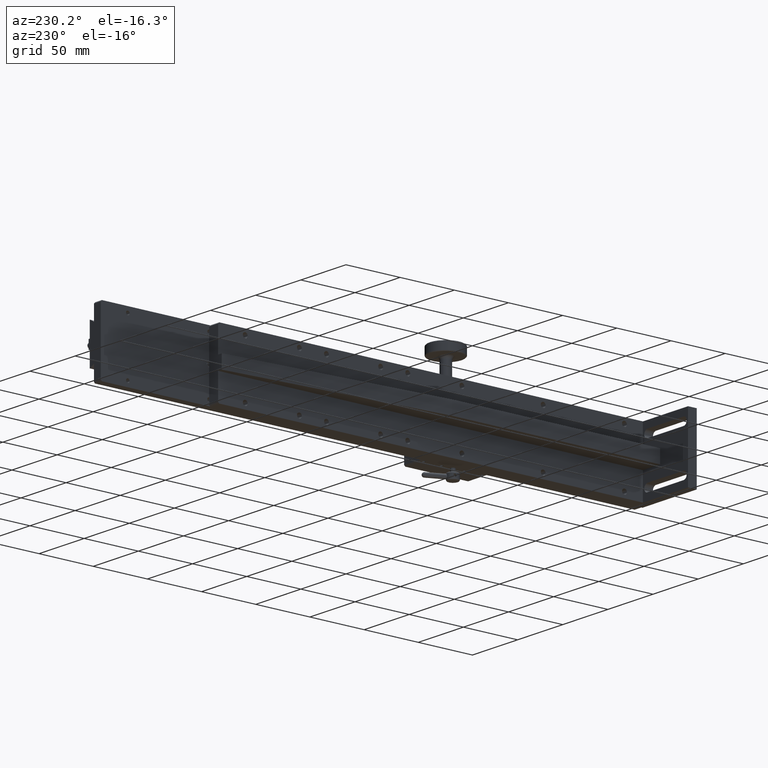
[diagram: clean part render]
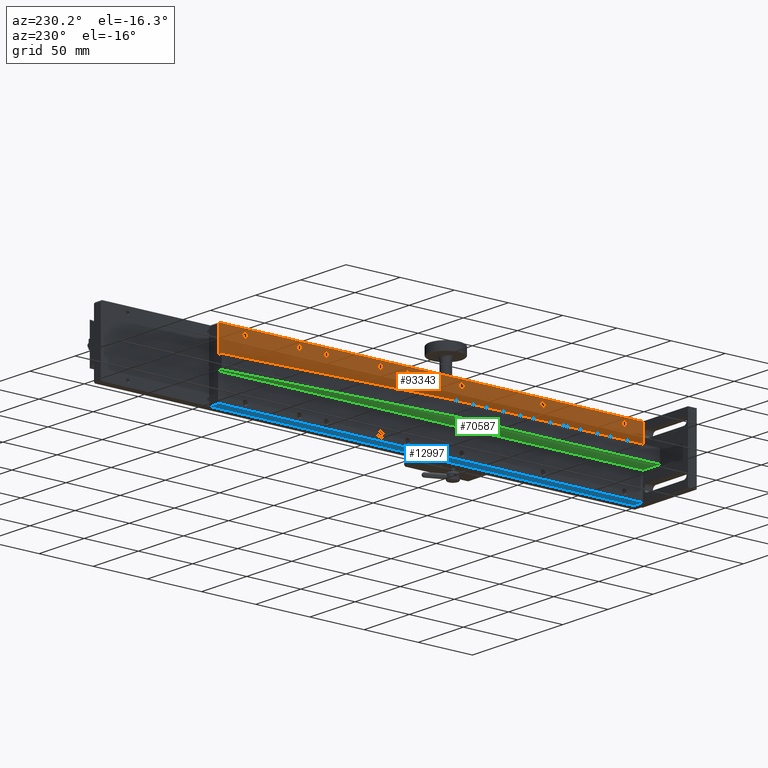
[diagram: same view with three faces highlighted in distinct colors, each labeled with its STEP entity id]
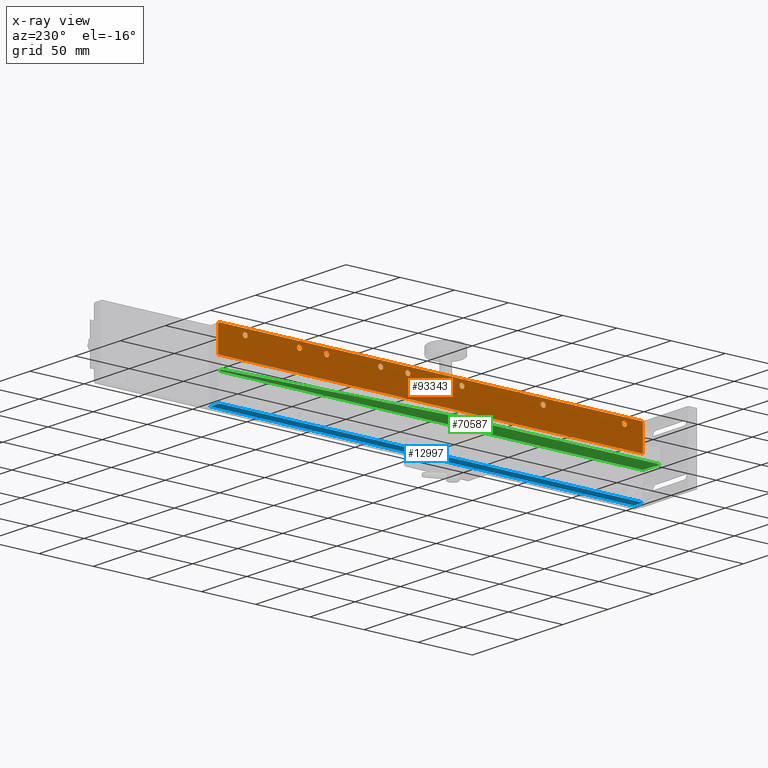
[diagram: x-ray of the same camera — body ghosted, the three highlighted faces saturated]
A machine part, auxiliary view with three faces highlighted in distinct colors.
The next image is the same camera in x-ray (body ghosted, the three faces saturated) — at least one of them is partly hidden behind the body in this view.
Their STEP definitions:

[orange] entity #93343 — the highlighted planar face has unit normal (1, -0, -0).
#373 = AXIS2_PLACEMENT_3D ( 'NONE', #85020, #87187, #35109 ) ;
#468 = CARTESIAN_POINT ( 'NONE',  ( 22.00000000000061107, 257.9999999999999432, -4.999999999997893241 ) ) ;
#469 = CARTESIAN_POINT ( 'NONE',  ( 22.00000000000070699, 332.9999999999999432, -4.999999999997393196 ) ) ;
#1274 = AXIS2_PLACEMENT_3D ( 'NONE', #68482, #45192, #61256 ) ;
#1486 = VERTEX_POINT ( 'NONE', #81207 ) ;
#2073 = VERTEX_POINT ( 'NONE', #51767 ) ;
#3132 = CIRCLE ( 'NONE', #52723, 2.249999999999999556 ) ;
#3375 = VERTEX_POINT ( 'NONE', #73319 ) ;
#3541 = CIRCLE ( 'NONE', #15947, 2.249999999999999556 ) ;
#3549 = AXIS2_PLACEMENT_3D ( 'NONE', #80980, #72674, #4538 ) ;
#3702 = EDGE_LOOP ( 'NONE', ( #21574, #53959 ) ) ;
#3958 = CARTESIAN_POINT ( 'NONE',  ( 22.00000000000077094, 382.9999999999996021, -4.999999999997395861 ) ) ;
#4138 = CARTESIAN_POINT ( 'NONE',  ( 22.00000000000031619, 15.99999999999999645, -1.137954273982938025E-13 ) ) ;
#4538 = DIRECTION ( 'NONE',  ( -2.261700943893177148E-15, -2.095098079272719268E-16, -1.000000000000000000 ) ) ;
#4724 = CIRCLE ( 'NONE', #25908, 2.249999999999999556 ) ;
#6620 = DIRECTION ( 'NONE',  ( 2.261700943893177148E-15, 2.095098079272719268E-16, 1.000000000000000000 ) ) ;
#6716 = VERTEX_POINT ( 'NONE', #89079 ) ;
#8057 = VERTEX_POINT ( 'NONE', #61255 ) ;
#8332 = ORIENTED_EDGE ( 'NONE', *, *, #69697, .F. ) ;
#11285 = AXIS2_PLACEMENT_3D ( 'NONE', #107186, #15731, #81715 ) ;
#11466 = DIRECTION ( 'NONE',  ( 1.541976423090495436E-15, 0.000000000000000000, 1.000000000000000000 ) ) ;
#11745 = FACE_BOUND ( 'NONE', #37784, .T. ) ;
#11796 = DIRECTION ( 'NONE',  ( -1.276756478318930021E-15, -1.000000000000000000, 2.095098079272746386E-16 ) ) ;
#12900 = LINE ( 'NONE', #97671, #36964 ) ;
#13385 = VERTEX_POINT ( 'NONE', #20466 ) ;
#13662 = VERTEX_POINT ( 'NONE', #48694 ) ;
#14888 = EDGE_CURVE ( 'NONE', #84525, #93003, #61597, .T. ) ;
#15098 = EDGE_LOOP ( 'NONE', ( #52143, #36585 ) ) ;
#15731 = DIRECTION ( 'NONE',  ( -1.000000000000000000, 1.276756478318930021E-15, 2.044860509396075866E-15 ) ) ;
#15947 = AXIS2_PLACEMENT_3D ( 'NONE', #3958, #61039, #88724 ) ;
#16048 = CARTESIAN_POINT ( 'NONE',  ( 22.00000000000051870, 182.9999999999996305, -4.999999999998752109 ) ) ;
#16925 = EDGE_LOOP ( 'NONE', ( #43755, #70283 ) ) ;
#18324 = CIRCLE ( 'NONE', #11285, 2.249999999999999556 ) ;
#18898 = CIRCLE ( 'NONE', #98481, 2.249999999999999556 ) ;
#19147 = EDGE_CURVE ( 'NONE', #61461, #2073, #77872, .T. ) ;
#20466 = CARTESIAN_POINT ( 'NONE',  ( 22.00000000000081712, 407.0000000000000000, -1.957137622978581741E-13 ) ) ;
#21574 = ORIENTED_EDGE ( 'NONE', *, *, #53772, .F. ) ;
#21718 = CIRCLE ( 'NONE', #57145, 2.249999999999999556 ) ;
#21816 = EDGE_CURVE ( 'NONE', #3375, #74027, #60963, .T. ) ;
#23219 = AXIS2_PLACEMENT_3D ( 'NONE', #104213, #53791, #87596 ) ;
#23842 = AXIS2_PLACEMENT_3D ( 'NONE', #65012, #47867, #30141 ) ;
#23981 = CARTESIAN_POINT ( 'NONE',  ( 22.00000000000041922, 107.9999999999996305, -7.249999999999259259 ) ) ;
#25908 = AXIS2_PLACEMENT_3D ( 'NONE', #108463, #100684, #51356 ) ;
#26775 = CARTESIAN_POINT ( 'NONE',  ( 22.00000000000026290, 15.99999999999999289, -24.00000000000010658 ) ) ;
#26867 = EDGE_CURVE ( 'NONE', #8057, #93823, #79865, .T. ) ;
#27080 = CIRCLE ( 'NONE', #64187, 2.249999999999999556 ) ;
#27530 = CARTESIAN_POINT ( 'NONE',  ( 22.00000000000070699, 332.9999999999999432, -4.999999999997393196 ) ) ;
#27902 = DIRECTION ( 'NONE',  ( 1.541976423090495436E-15, 0.000000000000000000, 1.000000000000000000 ) ) ;
#28849 = EDGE_CURVE ( 'NONE', #93823, #8057, #74645, .T. ) ;
#30141 = DIRECTION ( 'NONE',  ( 1.541976423090495436E-15, 0.000000000000000000, 1.000000000000000000 ) ) ;
#30188 = ORIENTED_EDGE ( 'NONE', *, *, #21816, .F. ) ;
#30682 = CARTESIAN_POINT ( 'NONE',  ( 22.00000000000077449, 382.9999999999996021, -2.749999999997396749 ) ) ;
#30748 = ORIENTED_EDGE ( 'NONE', *, *, #28849, .F. ) ;
#30894 = EDGE_CURVE ( 'NONE', #104721, #32725, #48219, .T. ) ;
#31359 = EDGE_CURVE ( 'NONE', #53297, #80721, #44654, .T. ) ;
#32725 = VERTEX_POINT ( 'NONE', #100586 ) ;
#33161 = DIRECTION ( 'NONE',  ( -1.000000000000000000, 1.276756478318930021E-15, 2.044860509396075866E-15 ) ) ;
#33971 = EDGE_CURVE ( 'NONE', #32725, #104721, #55713, .T. ) ;
#34400 = CARTESIAN_POINT ( 'NONE',  ( 22.00000000000081712, 408.0000000000000000, -1.959232721057854939E-13 ) ) ;
#34692 = CARTESIAN_POINT ( 'NONE',  ( 22.00000000000071054, 332.9999999999999432, -2.749999999997393196 ) ) ;
#35039 = VECTOR ( 'NONE', #6620, 1000.000000000000000 ) ;
#35109 = DIRECTION ( 'NONE',  ( 1.541976423090495436E-15, 0.000000000000000000, 1.000000000000000000 ) ) ;
#36585 = ORIENTED_EDGE ( 'NONE', *, *, #49362, .F. ) ;
#36964 = VECTOR ( 'NONE', #11796, 1000.000000000000000 ) ;
#37784 = EDGE_LOOP ( 'NONE', ( #97472, #30188 ) ) ;
#39273 = EDGE_LOOP ( 'NONE', ( #30748, #76215 ) ) ;
#40448 = DIRECTION ( 'NONE',  ( 1.541976423090495436E-15, 0.000000000000000000, 1.000000000000000000 ) ) ;
#40522 = EDGE_CURVE ( 'NONE', #104917, #73475, #58935, .T. ) ;
#41276 = EDGE_CURVE ( 'NONE', #67894, #73475, #12900, .T. ) ;
#41893 = ORIENTED_EDGE ( 'NONE', *, *, #47399, .F. ) ;
#43713 = DIRECTION ( 'NONE',  ( 1.541976423090495436E-15, 0.000000000000000000, 1.000000000000000000 ) ) ;
#43755 = ORIENTED_EDGE ( 'NONE', *, *, #43922, .F. ) ;
#43922 = EDGE_CURVE ( 'NONE', #2073, #61461, #98555, .T. ) ;
#43951 = DIRECTION ( 'NONE',  ( -2.261700943893177148E-15, -2.095098079272719268E-16, -1.000000000000000000 ) ) ;
#44137 = EDGE_LOOP ( 'NONE', ( #94368, #67262, #8332, #48697, #100559 ) ) ;
#44268 = CARTESIAN_POINT ( 'NONE',  ( 22.00000000000058265, 232.9999999999996305, -4.999999999998411937 ) ) ;
#44654 = CIRCLE ( 'NONE', #106594, 2.249999999999999556 ) ;
#45078 = DIRECTION ( 'NONE',  ( -1.000000000000000000, 1.276756478318930021E-15, 2.044860509396075866E-15 ) ) ;
#45192 = DIRECTION ( 'NONE',  ( -1.000000000000000000, 1.276756478318930021E-15, 2.044860509396075866E-15 ) ) ;
#45761 = DIRECTION ( 'NONE',  ( -6.964609106996406527E-16, 0.7071067811865670016, -0.7071067811865280328 ) ) ;
#45971 = CARTESIAN_POINT ( 'NONE',  ( 22.00000000000031974, 32.99999999999962341, -7.249999999999768185 ) ) ;
#47178 = FACE_BOUND ( 'NONE', #39273, .T. ) ;
#47399 = EDGE_CURVE ( 'NONE', #93003, #84525, #18898, .T. ) ;
#47867 = DIRECTION ( 'NONE',  ( -1.000000000000000000, 1.276756478318930021E-15, 2.044860509396075866E-15 ) ) ;
#48061 = CARTESIAN_POINT ( 'NONE',  ( 22.00000000000026290, 15.99999999999999289, -24.00000000000010658 ) ) ;
#48219 = CIRCLE ( 'NONE', #103034, 2.249999999999999556 ) ;
#48694 = CARTESIAN_POINT ( 'NONE',  ( 22.00000000000061462, 257.9999999999999432, -2.749999999997893685 ) ) ;
#48697 = ORIENTED_EDGE ( 'NONE', *, *, #41276, .T. ) ;
#49362 = EDGE_CURVE ( 'NONE', #1486, #91508, #4724, .T. ) ;
#50045 = EDGE_CURVE ( 'NONE', #13385, #81399, #85710, .T. ) ;
#50942 = ORIENTED_EDGE ( 'NONE', *, *, #33971, .F. ) ;
#51202 = DIRECTION ( 'NONE',  ( 1.541976423090495436E-15, 0.000000000000000000, 1.000000000000000000 ) ) ;
#51356 = DIRECTION ( 'NONE',  ( 1.541976423090495436E-15, 0.000000000000000000, 1.000000000000000000 ) ) ;
#51435 = DIRECTION ( 'NONE',  ( 1.541976423090495436E-15, 0.000000000000000000, 1.000000000000000000 ) ) ;
#51767 = CARTESIAN_POINT ( 'NONE',  ( 22.00000000000032685, 32.99999999999963052, -2.749999999999769074 ) ) ;
#52143 = ORIENTED_EDGE ( 'NONE', *, *, #81317, .F. ) ;
#52560 = VECTOR ( 'NONE', #45761, 1000.000000000000000 ) ;
#52723 = AXIS2_PLACEMENT_3D ( 'NONE', #468, #33161, #57546 ) ;
#52799 = VECTOR ( 'NONE', #66545, 1000.000000000000000 ) ;
#53297 = VERTEX_POINT ( 'NONE', #72479 ) ;
#53772 = EDGE_CURVE ( 'NONE', #13662, #6716, #3132, .T. ) ;
#53791 = DIRECTION ( 'NONE',  ( -1.000000000000000000, 1.276756478318930021E-15, 2.044860509396075866E-15 ) ) ;
#53959 = ORIENTED_EDGE ( 'NONE', *, *, #109242, .F. ) ;
#54030 = DIRECTION ( 'NONE',  ( 1.541976423090495436E-15, 0.000000000000000000, 1.000000000000000000 ) ) ;
#55117 = CARTESIAN_POINT ( 'NONE',  ( 22.00000000000032330, 32.99999999999963052, -4.999999999999768185 ) ) ;
#55487 = FACE_BOUND ( 'NONE', #102369, .T. ) ;
#55503 = EDGE_CURVE ( 'NONE', #13385, #104917, #57682, .T. ) ;
#55713 = CIRCLE ( 'NONE', #23842, 2.249999999999999556 ) ;
#57070 = DIRECTION ( 'NONE',  ( -1.000000000000000000, 1.276756478318930021E-15, 2.044860509396075866E-15 ) ) ;
#57145 = AXIS2_PLACEMENT_3D ( 'NONE', #469, #101860, #51435 ) ;
#57221 = CARTESIAN_POINT ( 'NONE',  ( 22.00000000000058620, 232.9999999999996305, -2.749999999998412381 ) ) ;
#57546 = DIRECTION ( 'NONE',  ( 1.541976423090495436E-15, 0.000000000000000000, 1.000000000000000000 ) ) ;
#57682 = LINE ( 'NONE', #34400, #52799 ) ;
#58196 = CARTESIAN_POINT ( 'NONE',  ( 22.00000000000068212, 307.9999999999996021, -2.749999999997904343 ) ) ;
#58935 = LINE ( 'NONE', #26775, #106083 ) ;
#59784 = DIRECTION ( 'NONE',  ( -1.000000000000000000, 1.276756478318930021E-15, 2.044860509396075866E-15 ) ) ;
#59932 = EDGE_CURVE ( 'NONE', #80721, #53297, #18324, .T. ) ;
#60963 = CIRCLE ( 'NONE', #107167, 2.249999999999999556 ) ;
#61039 = DIRECTION ( 'NONE',  ( -1.000000000000000000, 1.276756478318930021E-15, 2.044860509396075866E-15 ) ) ;
#61067 = CARTESIAN_POINT ( 'NONE',  ( 22.00000000000042633, 107.9999999999996305, -2.749999999999261036 ) ) ;
#61255 = CARTESIAN_POINT ( 'NONE',  ( 22.00000000000067502, 307.9999999999996021, -7.249999999997903011 ) ) ;
#61256 = DIRECTION ( 'NONE',  ( 1.541976423090495436E-15, 0.000000000000000000, 1.000000000000000000 ) ) ;
#61461 = VERTEX_POINT ( 'NONE', #45971 ) ;
#61576 = CARTESIAN_POINT ( 'NONE',  ( 22.00000000000081357, 408.0000000000000000, -1.000000000000140998 ) ) ;
#61597 = CIRCLE ( 'NONE', #77510, 2.249999999999999556 ) ;
#62714 = FACE_BOUND ( 'NONE', #15098, .T. ) ;
#62869 = EDGE_CURVE ( 'NONE', #74027, #3375, #21718, .T. ) ;
#63812 = PLANE ( 'NONE',  #3549 ) ;
#64187 = AXIS2_PLACEMENT_3D ( 'NONE', #71133, #104377, #27902 ) ;
#64349 = FACE_OUTER_BOUND ( 'NONE', #44137, .T. ) ;
#64782 = LINE ( 'NONE', #72568, #35039 ) ;
#65012 = CARTESIAN_POINT ( 'NONE',  ( 22.00000000000051870, 182.9999999999996305, -4.999999999998752109 ) ) ;
#66504 = ORIENTED_EDGE ( 'NONE', *, *, #14888, .F. ) ;
#66545 = DIRECTION ( 'NONE',  ( -1.276756478318930021E-15, -1.000000000000000000, 2.095098079272746386E-16 ) ) ;
#67262 = ORIENTED_EDGE ( 'NONE', *, *, #50045, .T. ) ;
#67894 = VERTEX_POINT ( 'NONE', #109592 ) ;
#68482 = CARTESIAN_POINT ( 'NONE',  ( 22.00000000000032330, 32.99999999999963052, -4.999999999999768185 ) ) ;
#69496 = ORIENTED_EDGE ( 'NONE', *, *, #30894, .F. ) ;
#69530 = ORIENTED_EDGE ( 'NONE', *, *, #59932, .F. ) ;
#69697 = EDGE_CURVE ( 'NONE', #67894, #81399, #64782, .T. ) ;
#70283 = ORIENTED_EDGE ( 'NONE', *, *, #19147, .F. ) ;
#70669 = DIRECTION ( 'NONE',  ( -1.000000000000000000, 1.276756478318930021E-15, 2.044860509396075866E-15 ) ) ;
#71040 = FACE_BOUND ( 'NONE', #3702, .T. ) ;
#71133 = CARTESIAN_POINT ( 'NONE',  ( 22.00000000000061107, 257.9999999999999432, -4.999999999997893241 ) ) ;
#71264 = CARTESIAN_POINT ( 'NONE',  ( 22.00000000000081357, 408.0000000000000000, -1.000000000000140110 ) ) ;
#71327 = CARTESIAN_POINT ( 'NONE',  ( 22.00000000000042277, 107.9999999999996305, -4.999999999999260147 ) ) ;
#72120 = FACE_BOUND ( 'NONE', #93516, .T. ) ;
#72479 = CARTESIAN_POINT ( 'NONE',  ( 22.00000000000057909, 232.9999999999996305, -7.249999999998411049 ) ) ;
#72568 = CARTESIAN_POINT ( 'NONE',  ( 22.00000000000076028, 408.0000000000000000, -24.00000000000019185 ) ) ;
#72674 = DIRECTION ( 'NONE',  ( 1.000000000000000000, -1.276756478318930021E-15, -2.261700943893176753E-15 ) ) ;
#73319 = CARTESIAN_POINT ( 'NONE',  ( 22.00000000000070344, 332.9999999999999432, -7.249999999997392308 ) ) ;
#73475 = VERTEX_POINT ( 'NONE', #48061 ) ;
#74027 = VERTEX_POINT ( 'NONE', #34692 ) ;
#74645 = CIRCLE ( 'NONE', #373, 2.249999999999999556 ) ;
#76215 = ORIENTED_EDGE ( 'NONE', *, *, #26867, .F. ) ;
#77510 = AXIS2_PLACEMENT_3D ( 'NONE', #71327, #105124, #97901 ) ;
#77872 = CIRCLE ( 'NONE', #106177, 2.249999999999999556 ) ;
#78524 = DIRECTION ( 'NONE',  ( -1.000000000000000000, 1.276756478318930021E-15, 2.044860509396075866E-15 ) ) ;
#79865 = CIRCLE ( 'NONE', #23219, 2.249999999999999556 ) ;
#80721 = VERTEX_POINT ( 'NONE', #57221 ) ;
#80980 = CARTESIAN_POINT ( 'NONE',  ( 22.00000000000076028, 408.0000000000000000, -24.00000000000019185 ) ) ;
#81207 = CARTESIAN_POINT ( 'NONE',  ( 22.00000000000076739, 382.9999999999996021, -7.249999999997395861 ) ) ;
#81317 = EDGE_CURVE ( 'NONE', #91508, #1486, #3541, .T. ) ;
#81399 = VERTEX_POINT ( 'NONE', #61576 ) ;
#81537 = FACE_BOUND ( 'NONE', #82120, .T. ) ;
#81715 = DIRECTION ( 'NONE',  ( 1.541976423090495436E-15, 0.000000000000000000, 1.000000000000000000 ) ) ;
#82120 = EDGE_LOOP ( 'NONE', ( #41893, #66504 ) ) ;
#84525 = VERTEX_POINT ( 'NONE', #23981 ) ;
#85020 = CARTESIAN_POINT ( 'NONE',  ( 22.00000000000067857, 307.9999999999996021, -4.999999999997903899 ) ) ;
#85710 = LINE ( 'NONE', #71264, #52560 ) ;
#87187 = DIRECTION ( 'NONE',  ( -1.000000000000000000, 1.276756478318930021E-15, 2.044860509396075866E-15 ) ) ;
#87596 = DIRECTION ( 'NONE',  ( 1.541976423090495436E-15, 0.000000000000000000, 1.000000000000000000 ) ) ;
#88203 = FACE_BOUND ( 'NONE', #16925, .T. ) ;
#88724 = DIRECTION ( 'NONE',  ( 1.541976423090495436E-15, 0.000000000000000000, 1.000000000000000000 ) ) ;
#89079 = CARTESIAN_POINT ( 'NONE',  ( 22.00000000000061107, 257.9999999999999432, -7.249999999997892353 ) ) ;
#91508 = VERTEX_POINT ( 'NONE', #30682 ) ;
#92438 = CARTESIAN_POINT ( 'NONE',  ( 22.00000000000052225, 182.9999999999996305, -2.749999999998752553 ) ) ;
#93003 = VERTEX_POINT ( 'NONE', #61067 ) ;
#93343 = ADVANCED_FACE ( 'NONE', ( #11745, #71040, #62714, #47178, #55487, #72120, #81537, #88203, #64349 ), #63812, .F. ) ;
#93516 = EDGE_LOOP ( 'NONE', ( #69496, #50942 ) ) ;
#93823 = VERTEX_POINT ( 'NONE', #58196 ) ;
#94368 = ORIENTED_EDGE ( 'NONE', *, *, #55503, .F. ) ;
#97472 = ORIENTED_EDGE ( 'NONE', *, *, #62869, .F. ) ;
#97671 = CARTESIAN_POINT ( 'NONE',  ( 22.00000000000076028, 408.0000000000000000, -24.00000000000019185 ) ) ;
#97901 = DIRECTION ( 'NONE',  ( 1.541976423090495436E-15, 0.000000000000000000, 1.000000000000000000 ) ) ;
#98481 = AXIS2_PLACEMENT_3D ( 'NONE', #103270, #45078, #51202 ) ;
#98555 = CIRCLE ( 'NONE', #1274, 2.249999999999999556 ) ;
#100559 = ORIENTED_EDGE ( 'NONE', *, *, #40522, .F. ) ;
#100586 = CARTESIAN_POINT ( 'NONE',  ( 22.00000000000051514, 182.9999999999996305, -7.249999999998751221 ) ) ;
#100684 = DIRECTION ( 'NONE',  ( -1.000000000000000000, 1.276756478318930021E-15, 2.044860509396075866E-15 ) ) ;
#100878 = ORIENTED_EDGE ( 'NONE', *, *, #31359, .F. ) ;
#101860 = DIRECTION ( 'NONE',  ( -1.000000000000000000, 1.276756478318930021E-15, 2.044860509396075866E-15 ) ) ;
#102369 = EDGE_LOOP ( 'NONE', ( #69530, #100878 ) ) ;
#103034 = AXIS2_PLACEMENT_3D ( 'NONE', #16048, #57070, #40448 ) ;
#103270 = CARTESIAN_POINT ( 'NONE',  ( 22.00000000000042277, 107.9999999999996305, -4.999999999999260147 ) ) ;
#104213 = CARTESIAN_POINT ( 'NONE',  ( 22.00000000000067857, 307.9999999999996021, -4.999999999997903899 ) ) ;
#104377 = DIRECTION ( 'NONE',  ( -1.000000000000000000, 1.276756478318930021E-15, 2.044860509396075866E-15 ) ) ;
#104721 = VERTEX_POINT ( 'NONE', #92438 ) ;
#104917 = VERTEX_POINT ( 'NONE', #4138 ) ;
#105124 = DIRECTION ( 'NONE',  ( -1.000000000000000000, 1.276756478318930021E-15, 2.044860509396075866E-15 ) ) ;
#106083 = VECTOR ( 'NONE', #43951, 1000.000000000000000 ) ;
#106177 = AXIS2_PLACEMENT_3D ( 'NONE', #55117, #70669, #54030 ) ;
#106594 = AXIS2_PLACEMENT_3D ( 'NONE', #44268, #59784, #43713 ) ;
#107167 = AXIS2_PLACEMENT_3D ( 'NONE', #27530, #78524, #11466 ) ;
#107186 = CARTESIAN_POINT ( 'NONE',  ( 22.00000000000058265, 232.9999999999996305, -4.999999999998411937 ) ) ;
#108463 = CARTESIAN_POINT ( 'NONE',  ( 22.00000000000077094, 382.9999999999996021, -4.999999999997395861 ) ) ;
#109242 = EDGE_CURVE ( 'NONE', #6716, #13662, #27080, .T. ) ;
#109592 = CARTESIAN_POINT ( 'NONE',  ( 22.00000000000076028, 408.0000000000000000, -24.00000000000019185 ) ) ;

[blue] entity #12997 — the highlighted planar face has unit normal (0, 0, 1).
#5069 = DIRECTION ( 'NONE',  ( -1.276756478318930021E-15, -1.000000000000000000, 2.095098079272746386E-16 ) ) ;
#7431 = CARTESIAN_POINT ( 'NONE',  ( 32.00000000000069633, 406.9999999999999432, -60.00000000000021316 ) ) ;
#10649 = LINE ( 'NONE', #106457, #76768 ) ;
#11967 = LINE ( 'NONE', #28594, #34837 ) ;
#12997 = ADVANCED_FACE ( 'NONE', ( #70915 ), #104714, .F. ) ;
#21058 = CARTESIAN_POINT ( 'NONE',  ( 32.00000000000019185, 15.99999999999997335, -60.00000000000012790 ) ) ;
#21989 = ORIENTED_EDGE ( 'NONE', *, *, #38481, .F. ) ;
#28594 = CARTESIAN_POINT ( 'NONE',  ( 22.00000000000068567, 408.0000000000000000, -60.00000000000019185 ) ) ;
#31013 = CARTESIAN_POINT ( 'NONE',  ( 32.00000000000019185, 15.99999999999997335, -60.00000000000012790 ) ) ;
#34837 = VECTOR ( 'NONE', #35818, 1000.000000000000000 ) ;
#35818 = DIRECTION ( 'NONE',  ( -1.276756478318930021E-15, -1.000000000000000000, 2.095098079272746386E-16 ) ) ;
#36670 = VERTEX_POINT ( 'NONE', #105648 ) ;
#37113 = CARTESIAN_POINT ( 'NONE',  ( 32.00000000000069633, 408.0000000000000000, -60.00000000000021316 ) ) ;
#37163 = DIRECTION ( 'NONE',  ( 1.000000000000000000, -1.276756478318930021E-15, -2.044860509396075866E-15 ) ) ;
#38248 = LINE ( 'NONE', #21058, #102451 ) ;
#38481 = EDGE_CURVE ( 'NONE', #36670, #103147, #38248, .T. ) ;
#40936 = CARTESIAN_POINT ( 'NONE',  ( 32.00000000000069633, 406.9999999999999432, -60.00000000000021316 ) ) ;
#48211 = VERTEX_POINT ( 'NONE', #75881 ) ;
#50020 = EDGE_CURVE ( 'NONE', #48211, #36670, #11967, .T. ) ;
#52828 = AXIS2_PLACEMENT_3D ( 'NONE', #37113, #72546, #97489 ) ;
#59888 = VERTEX_POINT ( 'NONE', #7431 ) ;
#62905 = EDGE_CURVE ( 'NONE', #48211, #59888, #74194, .T. ) ;
#67056 = EDGE_CURVE ( 'NONE', #59888, #103147, #10649, .T. ) ;
#70915 = FACE_OUTER_BOUND ( 'NONE', #77105, .T. ) ;
#72546 = DIRECTION ( 'NONE',  ( 2.044860509396076261E-15, 2.095098079272722227E-16, 1.000000000000000000 ) ) ;
#72668 = ORIENTED_EDGE ( 'NONE', *, *, #67056, .T. ) ;
#73055 = VECTOR ( 'NONE', #87954, 1000.000000000000000 ) ;
#74194 = LINE ( 'NONE', #40936, #73055 ) ;
#75881 = CARTESIAN_POINT ( 'NONE',  ( 22.00000000000068567, 406.9999999999999432, -60.00000000000019185 ) ) ;
#76768 = VECTOR ( 'NONE', #5069, 1000.000000000000000 ) ;
#77105 = EDGE_LOOP ( 'NONE', ( #88217, #95721, #72668, #21989 ) ) ;
#87954 = DIRECTION ( 'NONE',  ( 1.000000000000000000, -1.276756478318930021E-15, -2.044860509396075866E-15 ) ) ;
#88217 = ORIENTED_EDGE ( 'NONE', *, *, #50020, .F. ) ;
#95721 = ORIENTED_EDGE ( 'NONE', *, *, #62905, .T. ) ;
#97489 = DIRECTION ( 'NONE',  ( 1.000000000000000000, -1.276756478318930021E-15, -2.044860509396075866E-15 ) ) ;
#102451 = VECTOR ( 'NONE', #37163, 1000.000000000000000 ) ;
#103147 = VERTEX_POINT ( 'NONE', #31013 ) ;
#104714 = PLANE ( 'NONE',  #52828 ) ;
#105648 = CARTESIAN_POINT ( 'NONE',  ( 22.00000000000018474, 15.99999999999998579, -60.00000000000010658 ) ) ;
#106457 = CARTESIAN_POINT ( 'NONE',  ( 32.00000000000069633, 408.0000000000000000, -60.00000000000021316 ) ) ;

[green] entity #70587 — the highlighted planar face has unit normal (0, 0, 1).
#1129 = ORIENTED_EDGE ( 'NONE', *, *, #65102, .F. ) ;
#1964 = EDGE_CURVE ( 'NONE', #49667, #43701, #98915, .T. ) ;
#3114 = CARTESIAN_POINT ( 'NONE',  ( 3.000000000000484945, 207.9999999999999432, -36.00000000000010658 ) ) ;
#3801 = LINE ( 'NONE', #37604, #25591 ) ;
#4837 = CARTESIAN_POINT ( 'NONE',  ( 18.00000000000074252, 408.0000000000000000, -36.00000000000018474 ) ) ;
#10425 = DIRECTION ( 'NONE',  ( 2.044860509396076261E-15, 2.095098079272722227E-16, 1.000000000000000000 ) ) ;
#11240 = DIRECTION ( 'NONE',  ( -1.276756478318930021E-15, -1.000000000000000000, 2.095098079272746386E-16 ) ) ;
#13665 = ORIENTED_EDGE ( 'NONE', *, *, #96437, .T. ) ;
#13829 = VECTOR ( 'NONE', #16330, 1000.000000000000000 ) ;
#14305 = VECTOR ( 'NONE', #11240, 1000.000000000000000 ) ;
#16175 = VERTEX_POINT ( 'NONE', #86178 ) ;
#16330 = DIRECTION ( 'NONE',  ( -1.276756478318930021E-15, -1.000000000000000000, 2.095098079272746386E-16 ) ) ;
#17486 = VERTEX_POINT ( 'NONE', #4837 ) ;
#17913 = LINE ( 'NONE', #51713, #14305 ) ;
#23360 = ORIENTED_EDGE ( 'NONE', *, *, #1964, .F. ) ;
#24082 = CARTESIAN_POINT ( 'NONE',  ( 3.000000000000741629, 408.0000000000000568, -36.00000000000014921 ) ) ;
#25591 = VECTOR ( 'NONE', #70855, 1000.000000000000000 ) ;
#25898 = CARTESIAN_POINT ( 'NONE',  ( 18.02237414543267491, 408.2983219390926024, -36.00000000000018474 ) ) ;
#31946 = EDGE_CURVE ( 'NONE', #88309, #17486, #3801, .T. ) ;
#32635 = FACE_OUTER_BOUND ( 'NONE', #92094, .T. ) ;
#36257 = DIRECTION ( 'NONE',  ( 1.000000000000000000, -1.276756478318930021E-15, -2.044860509396075866E-15 ) ) ;
#37004 = DIRECTION ( 'NONE',  ( 1.000000000000000000, -1.276756478318930021E-15, -2.044860509396075866E-15 ) ) ;
#37149 = EDGE_CURVE ( 'NONE', #49667, #17486, #69113, .T. ) ;
#37604 = CARTESIAN_POINT ( 'NONE',  ( 22.00000000000073896, 408.0000000000000000, -36.00000000000019185 ) ) ;
#43701 = VERTEX_POINT ( 'NONE', #78992 ) ;
#44070 = VECTOR ( 'NONE', #68552, 999.9999999999998863 ) ;
#49667 = VERTEX_POINT ( 'NONE', #3114 ) ;
#51713 = CARTESIAN_POINT ( 'NONE',  ( 22.00000000000073896, 408.0000000000000000, -36.00000000000019185 ) ) ;
#58086 = CARTESIAN_POINT ( 'NONE',  ( 22.00000000000073896, 408.0000000000000000, -36.00000000000019185 ) ) ;
#65102 = EDGE_CURVE ( 'NONE', #43701, #16175, #101675, .T. ) ;
#68552 = DIRECTION ( 'NONE',  ( 0.07478994824163545663, 0.9971993098884563977, -3.618580475390354837E-16 ) ) ;
#68951 = CARTESIAN_POINT ( 'NONE',  ( 22.00000000000023448, 15.99999999999998934, -36.00000000000010658 ) ) ;
#69113 = LINE ( 'NONE', #25898, #44070 ) ;
#70587 = ADVANCED_FACE ( 'NONE', ( #32635 ), #91371, .F. ) ;
#70855 = DIRECTION ( 'NONE',  ( -1.000000000000000000, 1.276756478318930021E-15, 2.044860509396075866E-15 ) ) ;
#78437 = VECTOR ( 'NONE', #36257, 1000.000000000000000 ) ;
#78992 = CARTESIAN_POINT ( 'NONE',  ( 3.000000000000242029, 16.00000000000001421, -36.00000000000006395 ) ) ;
#85368 = ORIENTED_EDGE ( 'NONE', *, *, #37149, .T. ) ;
#86178 = CARTESIAN_POINT ( 'NONE',  ( 22.00000000000023448, 15.99999999999998934, -36.00000000000010658 ) ) ;
#88309 = VERTEX_POINT ( 'NONE', #94603 ) ;
#91371 = PLANE ( 'NONE',  #104019 ) ;
#92094 = EDGE_LOOP ( 'NONE', ( #1129, #23360, #85368, #100503, #13665 ) ) ;
#94603 = CARTESIAN_POINT ( 'NONE',  ( 22.00000000000073896, 408.0000000000000000, -36.00000000000019185 ) ) ;
#96437 = EDGE_CURVE ( 'NONE', #88309, #16175, #17913, .T. ) ;
#98915 = LINE ( 'NONE', #24082, #13829 ) ;
#100503 = ORIENTED_EDGE ( 'NONE', *, *, #31946, .F. ) ;
#101675 = LINE ( 'NONE', #68951, #78437 ) ;
#104019 = AXIS2_PLACEMENT_3D ( 'NONE', #58086, #10425, #37004 ) ;